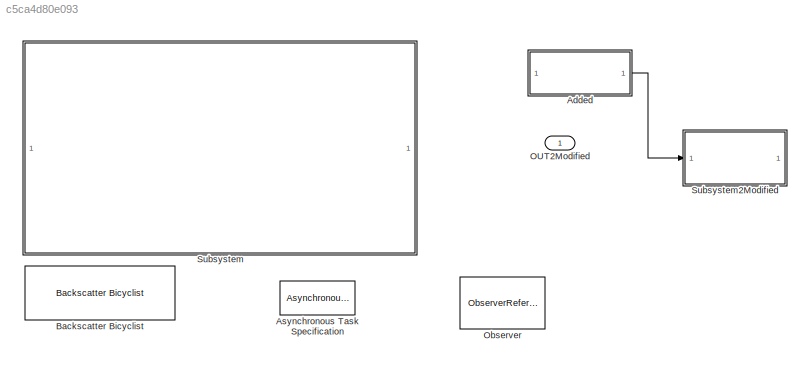
MODEL mdl_c5ca4d80e093
KIND model
CONFIG AbsTol = auto
CONFIG EnableMultiTasking = off
CONFIG FixedStep = auto
CONFIG MaxStep = auto
CONFIG MinStep = auto
CONFIG RelTol = 1e-3
CONFIG SampleTimeConstraint = Unconstrained
CONFIG SolverName = VariableStepAuto
CONFIG StartTime = 0.0
CONFIG StopTime = 10.0
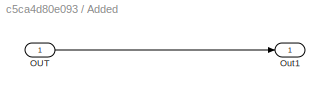
BLOCK [SubSystem] Added
BLOCK [Inport] Added/OUT
BLOCK [Outport] Added/Out1
BLOCK [AsynchronousTaskSpecification] Asynchronous Task Specification
BLOCK [Reference] Backscatter Bicyclist  REF=radarlib/Backscatter Bicyclist
  SourceBlock = radarlib/Backscatter Bicyclist
  SourceType = Backscatter Bicyclist
BLOCK [Outport] OUT2Modified
BLOCK [ObserverReference] Observer
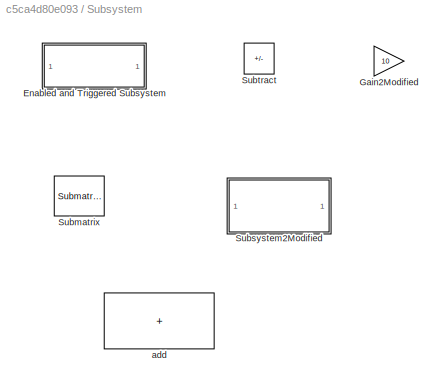
BLOCK [SubSystem] Subsystem
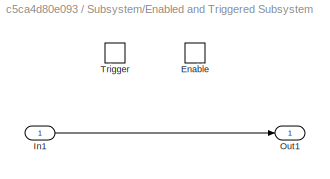
BLOCK [SubSystem] Subsystem/Enabled and Triggered Subsystem
  TreatAsAtomicUnit = on
BLOCK [EnablePort] Subsystem/Enabled and Triggered Subsystem/Enable
BLOCK [Inport] Subsystem/Enabled and Triggered Subsystem/In1
BLOCK [Outport] Subsystem/Enabled and Triggered Subsystem/Out1
BLOCK [TriggerPort] Subsystem/Enabled and Triggered Subsystem/Trigger
  StatesWhenEnabling = held
  VariantControl = (inherit)
BLOCK [Gain] Subsystem/Gain2Modified
  Gain = 10
  NameLocation = top
BLOCK [Reference] Subsystem/Submatrix  REF=matrix_library/Submatrix
  LibrarySourceBlock = simulink/Matrix\nOperations/Submatrix
  SourceBlock = matrix_library/Submatrix
  SourceType = Submatrix
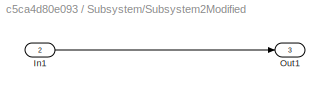
BLOCK [SubSystem] Subsystem/Subsystem2Modified
BLOCK [Inport] Subsystem/Subsystem2Modified/In1
  Port = 2
BLOCK [Outport] Subsystem/Subsystem2Modified/Out1
  Port = 3
BLOCK [Sum] Subsystem/Subtract
  IconShape = rectangular
  Inputs = +-
BLOCK [Sum] Subsystem/add
  IconShape = rectangular
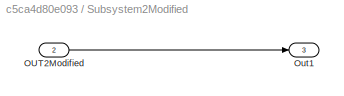
BLOCK [SubSystem] Subsystem2Modified
BLOCK [Inport] Subsystem2Modified/OUT2Modified
  Port = 2
BLOCK [Outport] Subsystem2Modified/Out1
  Port = 3
LINE Added/OUT:1 -> Added/Out1:1
LINE Added:1 -> Subsystem2Modified:1
LINE Subsystem/Enabled and Triggered Subsystem/In1:1 -> Subsystem/Enabled and Triggered Subsystem/Out1:1
LINE Subsystem/Subsystem2Modified/In1:1 -> Subsystem/Subsystem2Modified/Out1:1
LINE Subsystem2Modified/OUT2Modified:1 -> Subsystem2Modified/Out1:1
